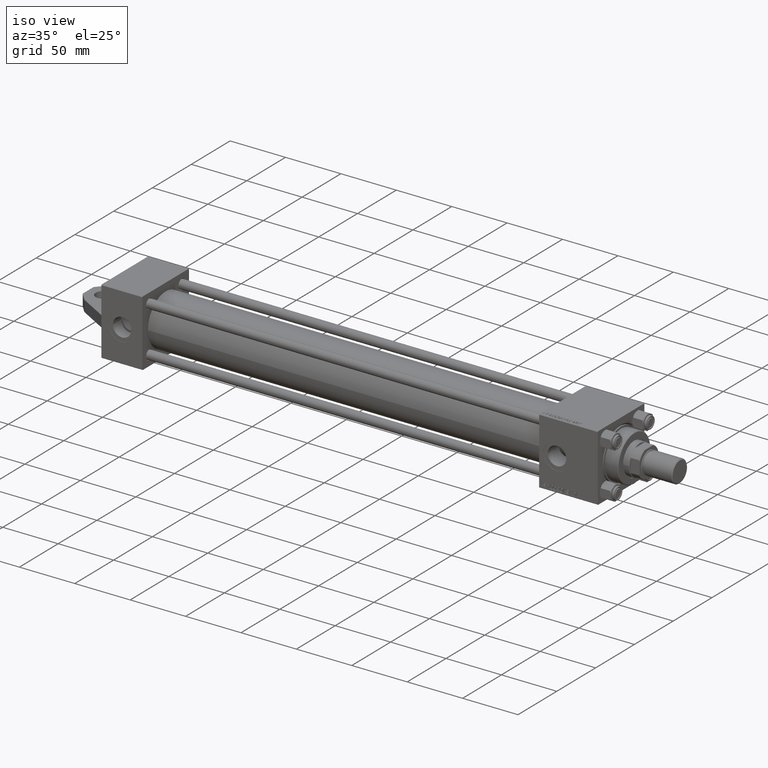
[diagram: clean part render]
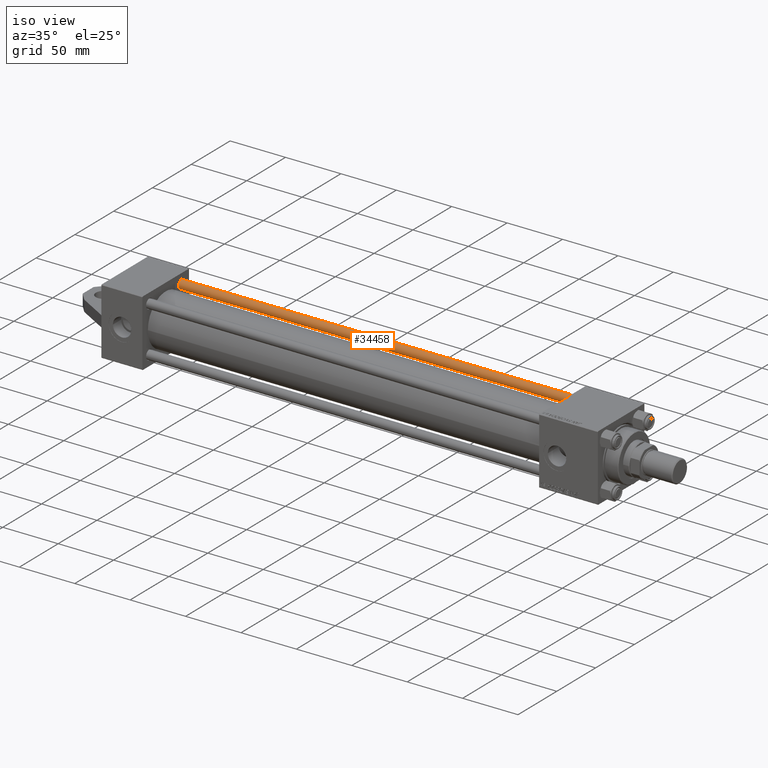
[diagram: same view with one face highlighted and labeled with its STEP entity id]
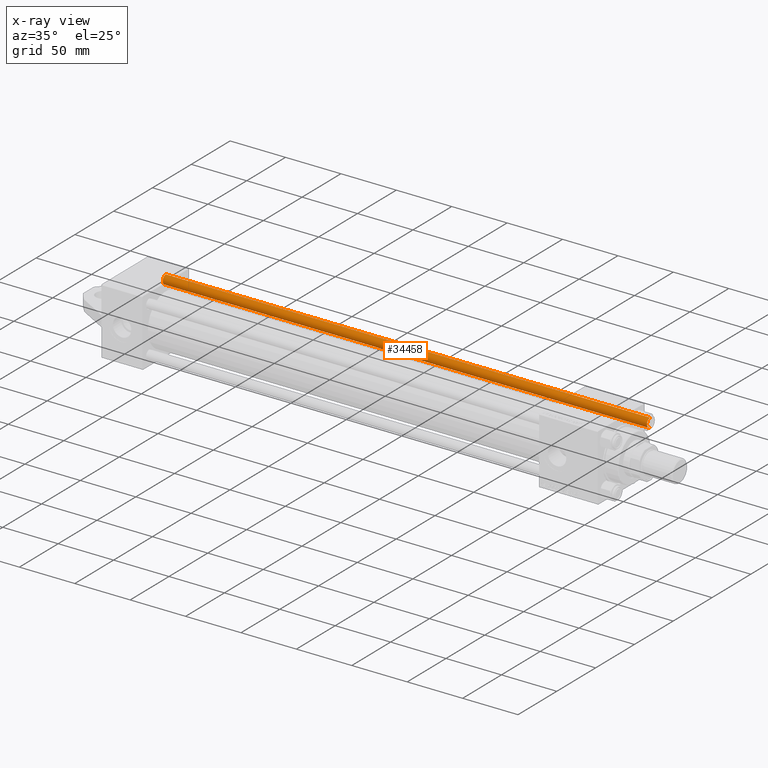
[diagram: x-ray of the same camera — body ghosted, the highlighted face saturated]
A machine part, iso view. The second image highlights one B-rep face of the part: STEP entity #34458.
The next image is the same camera in x-ray: the body ghosted, the highlighted face saturated — about 0% of this face is hidden behind the body in this view.
In plain terms, the highlighted cylindrical surface (edge-blend (fillet) strip) has radius 4 mm, axis along (-1, 0, -0).
Its self-contained STEP definition (entity closure, byte-faithful):
#1531 = ORIENTED_EDGE ( 'NONE', *, *, #29981, .T. ) ;
#3644 = VECTOR ( 'NONE', #46559, 1000.000000000000000 ) ;
#3770 = ORIENTED_EDGE ( 'NONE', *, *, #44529, .T. ) ;
#7341 = CARTESIAN_POINT ( 'NONE',  ( -4.000000000000000000, 0.000000000000000000, 438.0000000000000000 ) ) ;
#8369 = VERTEX_POINT ( 'NONE', #31547 ) ;
#8873 = AXIS2_PLACEMENT_3D ( 'NONE', #18408, #43600, #11367 ) ;
#9342 = CARTESIAN_POINT ( 'NONE',  ( 0.000000000000000000, 0.000000000000000000, 437.5000000000000568 ) ) ;
#10035 = DIRECTION ( 'NONE',  ( 0.000000000000000000, 0.000000000000000000, -1.000000000000000000 ) ) ;
#11028 = CARTESIAN_POINT ( 'NONE',  ( 4.000000000000000000, 4.898587196589412829E-16, 438.0000000000000000 ) ) ;
#11103 = DIRECTION ( 'NONE',  ( -0.000000000000000000, -0.000000000000000000, -1.000000000000000000 ) ) ;
#11367 = DIRECTION ( 'NONE',  ( -1.000000000000000000, 0.000000000000000000, 0.000000000000000000 ) ) ;
#12331 = EDGE_CURVE ( 'NONE', #8369, #18746, #37443, .T. ) ;
#13325 = AXIS2_PLACEMENT_3D ( 'NONE', #9342, #10035, #20612 ) ;
#13631 = DIRECTION ( 'NONE',  ( 1.000000000000000000, 0.000000000000000000, 0.000000000000000000 ) ) ;
#15021 = CARTESIAN_POINT ( 'NONE',  ( 4.000000000000000000, 4.898587196589412829E-16, 437.5000000000000568 ) ) ;
#16700 = DIRECTION ( 'NONE',  ( -0.000000000000000000, -0.000000000000000000, 1.000000000000000000 ) ) ;
#17143 = VERTEX_POINT ( 'NONE', #15021 ) ;
#18408 = CARTESIAN_POINT ( 'NONE',  ( 0.000000000000000000, 0.000000000000000000, 438.0000000000000000 ) ) ;
#18746 = VERTEX_POINT ( 'NONE', #23381 ) ;
#20435 = EDGE_LOOP ( 'NONE', ( #42243, #1531, #3770, #44280 ) ) ;
#20612 = DIRECTION ( 'NONE',  ( 1.000000000000000000, 0.000000000000000000, 0.000000000000000000 ) ) ;
#21587 = VECTOR ( 'NONE', #11103, 1000.000000000000000 ) ;
#22171 = FACE_OUTER_BOUND ( 'NONE', #20435, .T. ) ;
#23381 = CARTESIAN_POINT ( 'NONE',  ( 4.000000000000000000, 4.898587196589412829E-16, 0.5000000000000559552 ) ) ;
#29005 = CYLINDRICAL_SURFACE ( 'NONE', #8873, 4.000000000000000000 ) ;
#29059 = CARTESIAN_POINT ( 'NONE',  ( -4.000000000000000000, 0.000000000000000000, 437.5000000000000568 ) ) ;
#29981 = EDGE_CURVE ( 'NONE', #17143, #34034, #38129, .T. ) ;
#31547 = CARTESIAN_POINT ( 'NONE',  ( -4.000000000000000000, 0.000000000000000000, 0.5000000000000559552 ) ) ;
#34034 = VERTEX_POINT ( 'NONE', #29059 ) ;
#34458 = ADVANCED_FACE ( 'NONE', ( #22171 ), #29005, .T. ) ;
#35177 = AXIS2_PLACEMENT_3D ( 'NONE', #42340, #16700, #13631 ) ;
#36881 = EDGE_CURVE ( 'NONE', #17143, #18746, #43254, .T. ) ;
#37443 = CIRCLE ( 'NONE', #35177, 4.000000000000000000 ) ;
#38129 = CIRCLE ( 'NONE', #13325, 4.000000000000000000 ) ;
#42243 = ORIENTED_EDGE ( 'NONE', *, *, #36881, .F. ) ;
#42340 = CARTESIAN_POINT ( 'NONE',  ( 0.000000000000000000, 0.000000000000000000, 0.5000000000000559552 ) ) ;
#43254 = LINE ( 'NONE', #11028, #3644 ) ;
#43326 = LINE ( 'NONE', #7341, #21587 ) ;
#43600 = DIRECTION ( 'NONE',  ( -0.000000000000000000, -0.000000000000000000, -1.000000000000000000 ) ) ;
#44280 = ORIENTED_EDGE ( 'NONE', *, *, #12331, .T. ) ;
#44529 = EDGE_CURVE ( 'NONE', #34034, #8369, #43326, .T. ) ;
#46559 = DIRECTION ( 'NONE',  ( -0.000000000000000000, -0.000000000000000000, -1.000000000000000000 ) ) ;